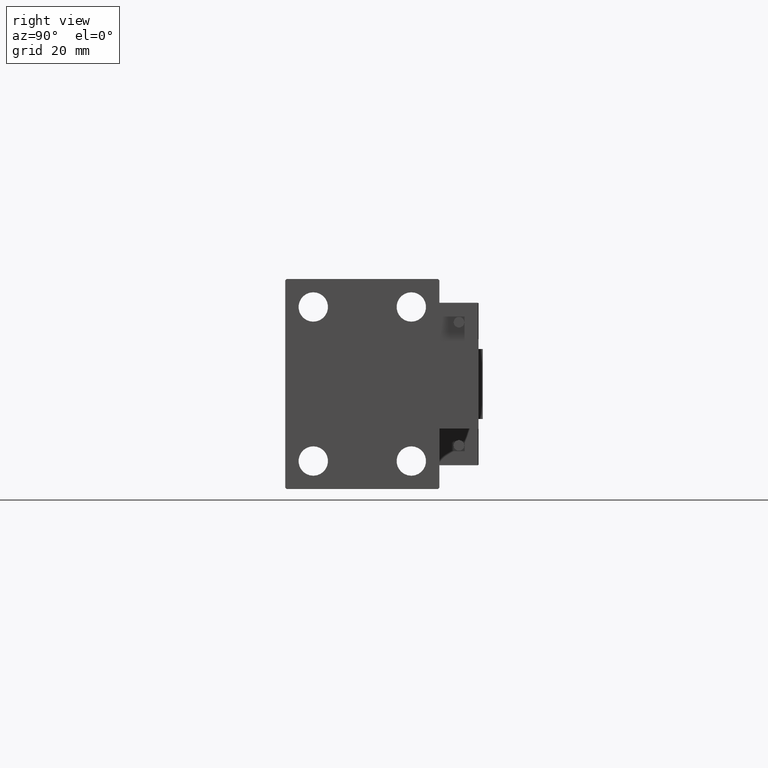
[diagram: clean part render]
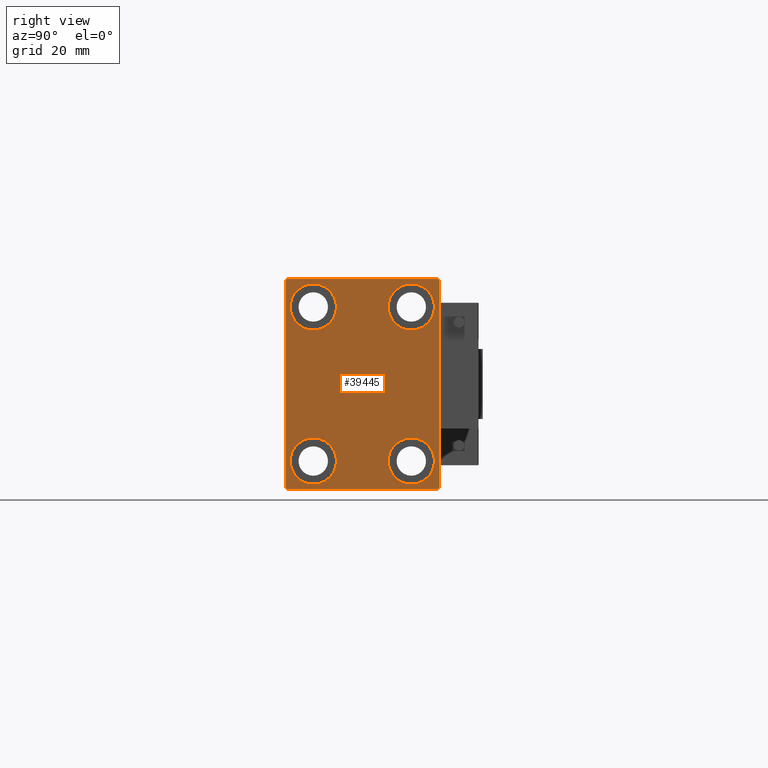
[diagram: same view with one face highlighted and labeled with its STEP entity id]
A machine part, right view. The second image highlights one B-rep face of the part: STEP entity #39445.
In plain terms, the highlighted planar face has unit normal (1, 0, 0).
Its self-contained STEP definition (entity closure, byte-faithful):
#565 = CARTESIAN_POINT ( 'NONE',  ( 155.0000000000000000, 17.49999999999999645, -27.50000000000000355 ) ) ;
#653 = EDGE_CURVE ( 'NONE', #20701, #46358, #50429, .T. ) ;
#667 = DIRECTION ( 'NONE',  ( -0.000000000000000000, 0.7071067811865474617, 0.7071067811865474617 ) ) ;
#704 = DIRECTION ( 'NONE',  ( -1.000000000000000000, -0.000000000000000000, -0.000000000000000000 ) ) ;
#1113 = EDGE_CURVE ( 'NONE', #35376, #13402, #32451, .T. ) ;
#1694 = LINE ( 'NONE', #33520, #2051 ) ;
#1857 = DIRECTION ( 'NONE',  ( 0.000000000000000000, -1.000000000000000000, -1.261617073437677999E-16 ) ) ;
#2051 = VECTOR ( 'NONE', #17337, 999.9999999999998863 ) ;
#2599 = AXIS2_PLACEMENT_3D ( 'NONE', #5105, #47954, #47459 ) ;
#2842 = CIRCLE ( 'NONE', #47087, 8.249999999999992895 ) ;
#2870 = DIRECTION ( 'NONE',  ( -1.000000000000000000, -0.000000000000000000, -0.000000000000000000 ) ) ;
#2954 = VECTOR ( 'NONE', #27326, 1000.000000000000000 ) ;
#3418 = DIRECTION ( 'NONE',  ( -0.000000000000000000, 0.7071067811865474617, -0.7071067811865474617 ) ) ;
#3612 = ORIENTED_EDGE ( 'NONE', *, *, #29178, .T. ) ;
#3616 = AXIS2_PLACEMENT_3D ( 'NONE', #10864, #10622, #45527 ) ;
#3789 = FACE_BOUND ( 'NONE', #33030, .T. ) ;
#4182 = VERTEX_POINT ( 'NONE', #35325 ) ;
#4432 = ORIENTED_EDGE ( 'NONE', *, *, #33696, .T. ) ;
#4584 = EDGE_CURVE ( 'NONE', #41873, #10745, #38027, .T. ) ;
#5105 = CARTESIAN_POINT ( 'NONE',  ( 155.0000000000000000, -17.49999999999999645, 27.49999999999999645 ) ) ;
#5134 = ORIENTED_EDGE ( 'NONE', *, *, #48882, .T. ) ;
#5252 = CARTESIAN_POINT ( 'NONE',  ( 155.0000000000000000, -32.25000000000076028, 32.24999999999897682 ) ) ;
#6107 = EDGE_CURVE ( 'NONE', #7688, #41873, #44003, .T. ) ;
#6333 = CIRCLE ( 'NONE', #42362, 8.250000000000000000 ) ;
#7631 = FACE_OUTER_BOUND ( 'NONE', #30463, .T. ) ;
#7688 = VERTEX_POINT ( 'NONE', #9109 ) ;
#7964 = EDGE_CURVE ( 'NONE', #38268, #7688, #48814, .T. ) ;
#8298 = DIRECTION ( 'NONE',  ( -1.000000000000000000, -0.000000000000000000, -0.000000000000000000 ) ) ;
#8516 = DIRECTION ( 'NONE',  ( 0.000000000000000000, 0.000000000000000000, 1.000000000000000000 ) ) ;
#8638 = CARTESIAN_POINT ( 'NONE',  ( 155.0000000000000000, 17.49999999999999645, -27.50000000000000355 ) ) ;
#9064 = ORIENTED_EDGE ( 'NONE', *, *, #6107, .T. ) ;
#9109 = CARTESIAN_POINT ( 'NONE',  ( 155.0000000000000000, -27.00000000000003197, 37.50000000000000000 ) ) ;
#9521 = CARTESIAN_POINT ( 'NONE',  ( 155.0000000000000000, -27.00000000000000355, -37.50000000000000000 ) ) ;
#10060 = DIRECTION ( 'NONE',  ( 0.000000000000000000, 0.000000000000000000, 1.000000000000000000 ) ) ;
#10622 = DIRECTION ( 'NONE',  ( -1.000000000000000000, -0.000000000000000000, -0.000000000000000000 ) ) ;
#10662 = ORIENTED_EDGE ( 'NONE', *, *, #28586, .T. ) ;
#10745 = VERTEX_POINT ( 'NONE', #30235 ) ;
#10864 = CARTESIAN_POINT ( 'NONE',  ( 155.0000000000000000, -17.50000000000000355, -27.50000000000000355 ) ) ;
#11251 = ORIENTED_EDGE ( 'NONE', *, *, #34388, .T. ) ;
#13062 = CARTESIAN_POINT ( 'NONE',  ( 155.0000000000000000, -17.50000000000000355, -19.25000000000000355 ) ) ;
#13402 = VERTEX_POINT ( 'NONE', #34467 ) ;
#13922 = EDGE_CURVE ( 'NONE', #45560, #38268, #1694, .T. ) ;
#14870 = VERTEX_POINT ( 'NONE', #43075 ) ;
#15211 = AXIS2_PLACEMENT_3D ( 'NONE', #565, #43662, #8516 ) ;
#15578 = DIRECTION ( 'NONE',  ( 0.000000000000000000, 0.000000000000000000, -1.000000000000000000 ) ) ;
#16157 = VECTOR ( 'NONE', #49833, 1000.000000000000000 ) ;
#16461 = VERTEX_POINT ( 'NONE', #48349 ) ;
#16944 = VECTOR ( 'NONE', #20660, 1000.000000000000000 ) ;
#17337 = DIRECTION ( 'NONE',  ( -0.000000000000000000, -0.7071067811865721087, 0.7071067811865230368 ) ) ;
#17561 = CIRCLE ( 'NONE', #3616, 8.250000000000000000 ) ;
#17980 = EDGE_CURVE ( 'NONE', #39014, #16461, #44397, .T. ) ;
#17999 = VERTEX_POINT ( 'NONE', #40506 ) ;
#18533 = CARTESIAN_POINT ( 'NONE',  ( 155.0000000000000000, -17.49999999999999645, 35.74999999999999289 ) ) ;
#18671 = CARTESIAN_POINT ( 'NONE',  ( 155.0000000000000000, 0.000000000000000000, 0.000000000000000000 ) ) ;
#18898 = VERTEX_POINT ( 'NONE', #13062 ) ;
#19358 = CARTESIAN_POINT ( 'NONE',  ( 155.0000000000000000, -27.50000000000000355, -37.50000000000000000 ) ) ;
#19428 = AXIS2_PLACEMENT_3D ( 'NONE', #43297, #704, #46895 ) ;
#19917 = ORIENTED_EDGE ( 'NONE', *, *, #27594, .T. ) ;
#20660 = DIRECTION ( 'NONE',  ( 0.000000000000000000, -0.7071067811865279218, -0.7071067811865671127 ) ) ;
#20701 = VERTEX_POINT ( 'NONE', #9521 ) ;
#20962 = EDGE_LOOP ( 'NONE', ( #10662, #25209 ) ) ;
#22522 = AXIS2_PLACEMENT_3D ( 'NONE', #38026, #2870, #10060 ) ;
#22994 = EDGE_LOOP ( 'NONE', ( #19917, #35794 ) ) ;
#23045 = PLANE ( 'NONE',  #38342 ) ;
#25209 = ORIENTED_EDGE ( 'NONE', *, *, #28816, .T. ) ;
#25620 = CARTESIAN_POINT ( 'NONE',  ( 155.0000000000000000, 27.00000000000003197, -37.50000000000000000 ) ) ;
#26634 = FACE_BOUND ( 'NONE', #20962, .T. ) ;
#27140 = FACE_BOUND ( 'NONE', #39718, .T. ) ;
#27326 = DIRECTION ( 'NONE',  ( 0.000000000000000000, 1.000000000000000000, 0.000000000000000000 ) ) ;
#27594 = EDGE_CURVE ( 'NONE', #34762, #18898, #17561, .T. ) ;
#27810 = CARTESIAN_POINT ( 'NONE',  ( 155.0000000000000000, 17.50000000000000355, 27.49999999999999645 ) ) ;
#28033 = CARTESIAN_POINT ( 'NONE',  ( 155.0000000000000000, 27.49999999999999645, 37.00000000000004263 ) ) ;
#28077 = DIRECTION ( 'NONE',  ( 0.000000000000000000, 0.000000000000000000, 1.000000000000000000 ) ) ;
#28586 = EDGE_CURVE ( 'NONE', #4182, #14870, #2842, .T. ) ;
#28816 = EDGE_CURVE ( 'NONE', #14870, #4182, #35638, .T. ) ;
#29178 = EDGE_CURVE ( 'NONE', #17999, #45560, #43763, .T. ) ;
#30096 = EDGE_CURVE ( 'NONE', #46358, #17999, #47625, .T. ) ;
#30235 = CARTESIAN_POINT ( 'NONE',  ( 155.0000000000000000, -27.50000000000000355, -37.00000000000000000 ) ) ;
#30372 = ORIENTED_EDGE ( 'NONE', *, *, #17980, .T. ) ;
#30463 = EDGE_LOOP ( 'NONE', ( #43426, #9064, #38851, #5134, #48776, #34113, #3612, #47325 ) ) ;
#31002 = DIRECTION ( 'NONE',  ( 1.000000000000000000, 0.000000000000000000, 0.000000000000000000 ) ) ;
#31479 = CARTESIAN_POINT ( 'NONE',  ( 155.0000000000000000, 27.50000000000000355, -37.50000000000000000 ) ) ;
#31946 = CARTESIAN_POINT ( 'NONE',  ( 155.0000000000000000, -17.50000000000000355, -27.50000000000000355 ) ) ;
#32063 = CARTESIAN_POINT ( 'NONE',  ( 155.0000000000000000, 26.99999999999999645, 37.50000000000000711 ) ) ;
#32252 = DIRECTION ( 'NONE',  ( 0.000000000000000000, 0.000000000000000000, 1.000000000000000000 ) ) ;
#32451 = CIRCLE ( 'NONE', #15211, 8.250000000000000000 ) ;
#32774 = ORIENTED_EDGE ( 'NONE', *, *, #1113, .T. ) ;
#33024 = DIRECTION ( 'NONE',  ( -1.000000000000000000, -0.000000000000000000, -0.000000000000000000 ) ) ;
#33030 = EDGE_LOOP ( 'NONE', ( #32774, #4432 ) ) ;
#33182 = CARTESIAN_POINT ( 'NONE',  ( 155.0000000000000000, -27.50000000000000355, 37.50000000000000000 ) ) ;
#33520 = CARTESIAN_POINT ( 'NONE',  ( 155.0000000000000000, 32.24999999999906208, 32.25000000000130029 ) ) ;
#33696 = EDGE_CURVE ( 'NONE', #13402, #35376, #6333, .T. ) ;
#34022 = VECTOR ( 'NONE', #667, 1000.000000000000114 ) ;
#34085 = FACE_BOUND ( 'NONE', #22994, .T. ) ;
#34113 = ORIENTED_EDGE ( 'NONE', *, *, #30096, .T. ) ;
#34195 = VECTOR ( 'NONE', #3418, 1000.000000000000114 ) ;
#34388 = EDGE_CURVE ( 'NONE', #16461, #39014, #41564, .T. ) ;
#34467 = CARTESIAN_POINT ( 'NONE',  ( 155.0000000000000000, 17.49999999999999645, -19.25000000000000355 ) ) ;
#34728 = LINE ( 'NONE', #37816, #34195 ) ;
#34762 = VERTEX_POINT ( 'NONE', #44256 ) ;
#35264 = DIRECTION ( 'NONE',  ( 0.000000000000000000, 0.000000000000000000, 1.000000000000000000 ) ) ;
#35325 = CARTESIAN_POINT ( 'NONE',  ( 155.0000000000000000, 17.50000000000000355, 19.25000000000000000 ) ) ;
#35376 = VERTEX_POINT ( 'NONE', #43372 ) ;
#35638 = CIRCLE ( 'NONE', #22522, 8.249999999999992895 ) ;
#35794 = ORIENTED_EDGE ( 'NONE', *, *, #47807, .T. ) ;
#35809 = AXIS2_PLACEMENT_3D ( 'NONE', #31946, #47583, #28077 ) ;
#36676 = VECTOR ( 'NONE', #1857, 1000.000000000000000 ) ;
#37816 = CARTESIAN_POINT ( 'NONE',  ( 155.0000000000000000, -32.25000000000000000, -32.25000000000000000 ) ) ;
#38026 = CARTESIAN_POINT ( 'NONE',  ( 155.0000000000000000, 17.50000000000000355, 27.49999999999999645 ) ) ;
#38027 = LINE ( 'NONE', #33182, #16157 ) ;
#38268 = VERTEX_POINT ( 'NONE', #32063 ) ;
#38342 = AXIS2_PLACEMENT_3D ( 'NONE', #18671, #31002, #15578 ) ;
#38851 = ORIENTED_EDGE ( 'NONE', *, *, #4584, .T. ) ;
#39014 = VERTEX_POINT ( 'NONE', #18533 ) ;
#39445 = ADVANCED_FACE ( 'NONE', ( #3789, #27140, #26634, #34085, #7631 ), #23045, .T. ) ;
#39718 = EDGE_LOOP ( 'NONE', ( #11251, #30372 ) ) ;
#39930 = CARTESIAN_POINT ( 'NONE',  ( 155.0000000000000000, 32.25000000000001421, -32.25000000000001421 ) ) ;
#40506 = CARTESIAN_POINT ( 'NONE',  ( 155.0000000000000000, 27.50000000000000355, -37.00000000000002842 ) ) ;
#40566 = VECTOR ( 'NONE', #47115, 1000.000000000000000 ) ;
#41291 = CARTESIAN_POINT ( 'NONE',  ( 155.0000000000000000, -27.50000000000000355, 37.00000000000000000 ) ) ;
#41564 = CIRCLE ( 'NONE', #19428, 8.249999999999992895 ) ;
#41873 = VERTEX_POINT ( 'NONE', #41291 ) ;
#42362 = AXIS2_PLACEMENT_3D ( 'NONE', #8638, #33024, #32252 ) ;
#43075 = CARTESIAN_POINT ( 'NONE',  ( 155.0000000000000000, 17.50000000000000355, 35.74999999999999289 ) ) ;
#43297 = CARTESIAN_POINT ( 'NONE',  ( 155.0000000000000000, -17.49999999999999645, 27.49999999999999645 ) ) ;
#43372 = CARTESIAN_POINT ( 'NONE',  ( 155.0000000000000000, 17.49999999999999645, -35.75000000000000711 ) ) ;
#43426 = ORIENTED_EDGE ( 'NONE', *, *, #7964, .T. ) ;
#43662 = DIRECTION ( 'NONE',  ( -1.000000000000000000, -0.000000000000000000, -0.000000000000000000 ) ) ;
#43763 = LINE ( 'NONE', #31479, #40566 ) ;
#44003 = LINE ( 'NONE', #5252, #16944 ) ;
#44203 = CARTESIAN_POINT ( 'NONE',  ( 155.0000000000000000, 27.49999999999999645, 37.50000000000000711 ) ) ;
#44256 = CARTESIAN_POINT ( 'NONE',  ( 155.0000000000000000, -17.50000000000000355, -35.75000000000000711 ) ) ;
#44397 = CIRCLE ( 'NONE', #2599, 8.249999999999992895 ) ;
#45527 = DIRECTION ( 'NONE',  ( 0.000000000000000000, 0.000000000000000000, 1.000000000000000000 ) ) ;
#45560 = VERTEX_POINT ( 'NONE', #28033 ) ;
#46358 = VERTEX_POINT ( 'NONE', #25620 ) ;
#46895 = DIRECTION ( 'NONE',  ( 0.000000000000000000, 0.000000000000000000, 1.000000000000000000 ) ) ;
#47087 = AXIS2_PLACEMENT_3D ( 'NONE', #27810, #8298, #35264 ) ;
#47115 = DIRECTION ( 'NONE',  ( 0.000000000000000000, -9.251858538542970348E-17, 1.000000000000000000 ) ) ;
#47325 = ORIENTED_EDGE ( 'NONE', *, *, #13922, .T. ) ;
#47459 = DIRECTION ( 'NONE',  ( 0.000000000000000000, 0.000000000000000000, 1.000000000000000000 ) ) ;
#47583 = DIRECTION ( 'NONE',  ( -1.000000000000000000, -0.000000000000000000, -0.000000000000000000 ) ) ;
#47625 = LINE ( 'NONE', #39930, #34022 ) ;
#47807 = EDGE_CURVE ( 'NONE', #18898, #34762, #49716, .T. ) ;
#47954 = DIRECTION ( 'NONE',  ( -1.000000000000000000, -0.000000000000000000, -0.000000000000000000 ) ) ;
#48349 = CARTESIAN_POINT ( 'NONE',  ( 155.0000000000000000, -17.49999999999999645, 19.25000000000000000 ) ) ;
#48776 = ORIENTED_EDGE ( 'NONE', *, *, #653, .T. ) ;
#48814 = LINE ( 'NONE', #44203, #36676 ) ;
#48882 = EDGE_CURVE ( 'NONE', #10745, #20701, #34728, .T. ) ;
#49716 = CIRCLE ( 'NONE', #35809, 8.250000000000000000 ) ;
#49833 = DIRECTION ( 'NONE',  ( 0.000000000000000000, 0.000000000000000000, -1.000000000000000000 ) ) ;
#50429 = LINE ( 'NONE', #19358, #2954 ) ;